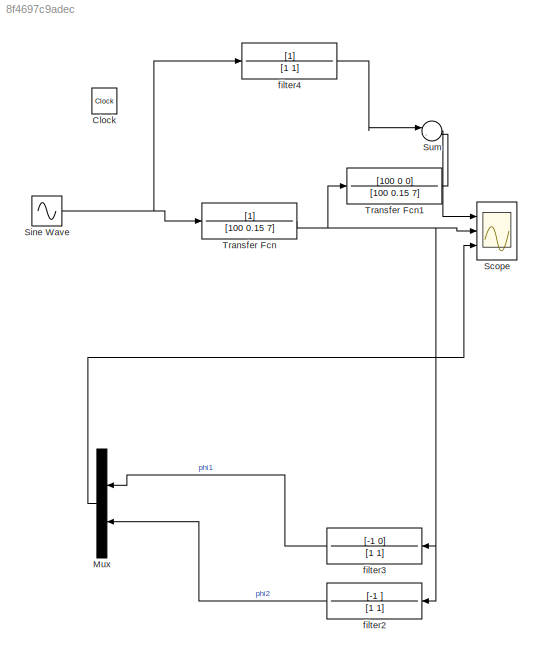
MODEL slx_8f4697c9adec
KIND model
CONFIG AbsTol = auto
CONFIG FixedStep = auto
CONFIG MaxStep = auto
CONFIG MinStep = auto
CONFIG RelTol = 1e-3
CONFIG SampleTimeConstraint = Unconstrained
CONFIG Solver = VariableStepAuto
CONFIG SolverMode = Auto
CONFIG SolverName = VariableStepAuto
CONFIG StartTime = 0.0
CONFIG StopTime = 25
BLOCK [Clock] Clock
  Decimation = 250
BLOCK [Mux] Mux
  DisplayOption = bar
  Inputs = 2
  Ports = [2, 1]
BLOCK [Scope] Scope
  NumInputPorts = 3
  Ports = [3]
  ScopeSpecificationString = Simulink.scopes.TimeScopeBlockCfg('CurrentConfiguration', extmgr.ConfigurationSet(extmgr.Configuration('Core','General UI',true),extmgr.Configuration('Core','Source UI',true),extmgr.Configuration('Sources','WiredSimulink',true),extmgr.Configuration('Visuals','Time Domain',true,'SerializedDisplays',{struct('MinYLimReal','-1.99761','MaxYLimReal','0.22196','YLabelReal','','MinYLimMag','0.00000','MaxY...<+2624ch>
BLOCK [Sin] Sine Wave
  Bias = 1
  Frequency = pi/3
  Phase = pi/2
  Ports = [0, 1]
  SampleTime = 0
BLOCK [Sum] Sum
  IconShape = round
  InputSameDT = off
  Inputs = |-+
  OutDataTypeStr = Inherit: Inherit via internal rule
  Ports = [2, 1]
  SaturateOnIntegerOverflow = off
BLOCK [TransferFcn] Transfer Fcn
  Denominator = [100 0.15 7]
BLOCK [TransferFcn] Transfer Fcn1
  Denominator = [100 0.15 7]
  Numerator = [100 0 0]
BLOCK [TransferFcn] filter2
  Numerator = [-1 ]
BLOCK [TransferFcn] filter3
  Numerator = [-1  0]
BLOCK [TransferFcn] filter4
LINE Mux:1 -> Scope:3
NET Sine Wave:1 -> Transfer Fcn:1, filter4:1
LINE Sum:1 -> Scope:1
LINE Transfer Fcn1:1 -> Sum:2
NET Transfer Fcn:1 -> Scope:2, Transfer Fcn1:1, filter2:1, filter3:1
LINE filter2:1 -> Mux:2
LINE filter3:1 -> Mux:1
LINE filter4:1 -> Sum:1
note: NET lines group one-source signal fan-out (src -> all destinations, sorted); 1:1 wires keep LINE
